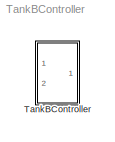
MODEL TankBController
KIND model
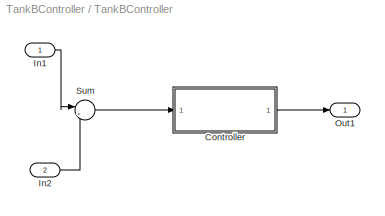
BLOCK [SubSystem] TankBController
  FunctionWithSeparateData = off
  MaskHideContents = off
  MinAlgLoopOccurrences = off
  Opaque = off
  Ports = [2, 1]
  PropExecContextOutsideSubsystem = off
  RTWSystemCode = Auto
  RequestExecContextInheritance = off
  SID = 1
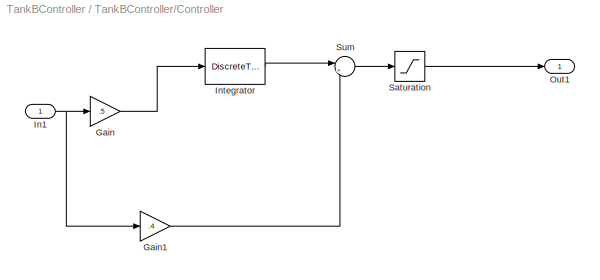
BLOCK [SubSystem] TankBController/Controller
  FunctionWithSeparateData = off
  MaskHideContents = off
  MinAlgLoopOccurrences = off
  Opaque = off
  Ports = [1, 1]
  PropExecContextOutsideSubsystem = off
  RTWSystemCode = Auto
  RequestExecContextInheritance = off
  SID = 4
BLOCK [Gain] TankBController/Controller/Gain
  Gain = .5
  OutDataTypeStr = Inherit: Inherit via internal rule
  ParamDataTypeStr = Inherit: Inherit via internal rule
  SID = 6
  SaturateOnIntegerOverflow = off
BLOCK [Gain] TankBController/Controller/Gain1
  Gain = .4
  OutDataTypeStr = Inherit: Inherit via internal rule
  ParamDataTypeStr = Inherit: Inherit via internal rule
  SID = 7
  SaturateOnIntegerOverflow = off
BLOCK [Inport] TankBController/Controller/In1
  IconDisplay = Port number
  SID = 5
BLOCK [DiscreteTransferFcn] TankBController/Controller/Integrator
  Denominator = [1 -1]
  InputPortMap = u0
  Numerator = [0.01]
  Ports = [1, 1]
  SID = 8
  SampleTime = 0.01
BLOCK [Outport] TankBController/Controller/Out1
  IconDisplay = Port number
  SID = 11
BLOCK [Saturate] TankBController/Controller/Saturation
  InputPortMap = u0
  LowerLimit = 0
  Ports = [1, 1]
  SID = 9
  UpperLimit = 10
BLOCK [Sum] TankBController/Controller/Sum
  IconShape = round
  InputSameDT = off
  Inputs = |++
  OutDataTypeStr = Inherit: Inherit via internal rule
  Ports = [2, 1]
  SID = 10
  SaturateOnIntegerOverflow = off
BLOCK [Inport] TankBController/In1
  IconDisplay = Port number
  OutDataTypeStr = double
  SID = 2
BLOCK [Inport] TankBController/In2
  IconDisplay = Port number
  OutDataTypeStr = double
  Port = 2
  SID = 3
BLOCK [Outport] TankBController/Out1
  IconDisplay = Port number
  OutDataTypeStr = double
  SID = 13
BLOCK [Sum] TankBController/Sum
  IconShape = round
  InputSameDT = off
  Inputs = |+-
  OutDataTypeStr = Inherit: Inherit via internal rule
  Ports = [2, 1]
  SID = 12
  SaturateOnIntegerOverflow = off
LINE TankBController/Controller/Gain1:1 -> TankBController/Controller/Sum:2
LINE TankBController/Controller/Gain:1 -> TankBController/Controller/Integrator:1
NET TankBController/Controller/In1:1 -> TankBController/Controller/Gain1:1, TankBController/Controller/Gain:1
LINE TankBController/Controller/Integrator:1 -> TankBController/Controller/Sum:1
LINE TankBController/Controller/Saturation:1 -> TankBController/Controller/Out1:1
LINE TankBController/Controller/Sum:1 -> TankBController/Controller/Saturation:1
LINE TankBController/Controller:1 -> TankBController/Out1:1
LINE TankBController/In1:1 -> TankBController/Sum:1
LINE TankBController/In2:1 -> TankBController/Sum:2
LINE TankBController/Sum:1 -> TankBController/Controller:1
note: NET lines group one-source signal fan-out (src -> all destinations, sorted); 1:1 wires keep LINE
